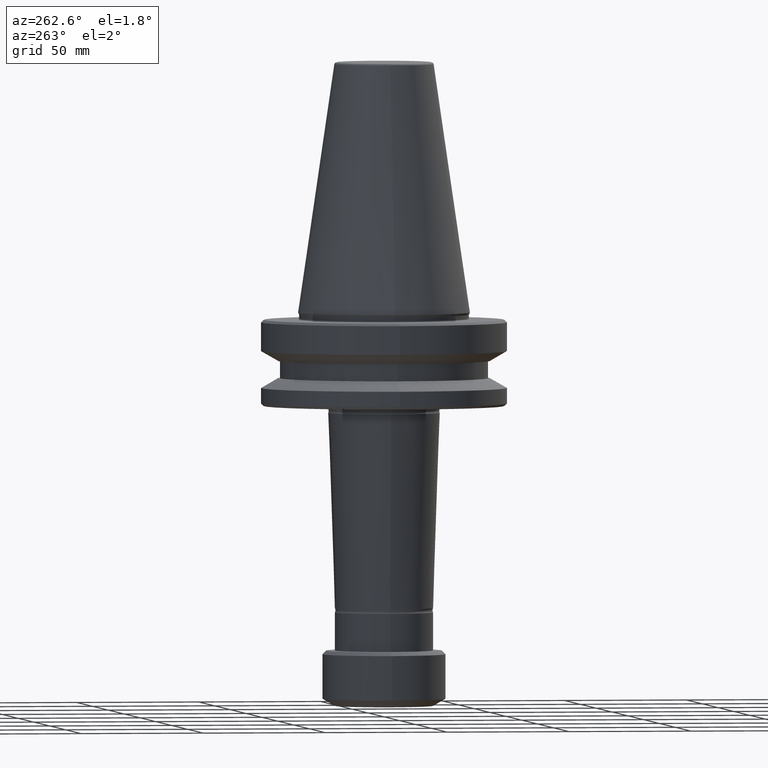
[diagram: clean part render]
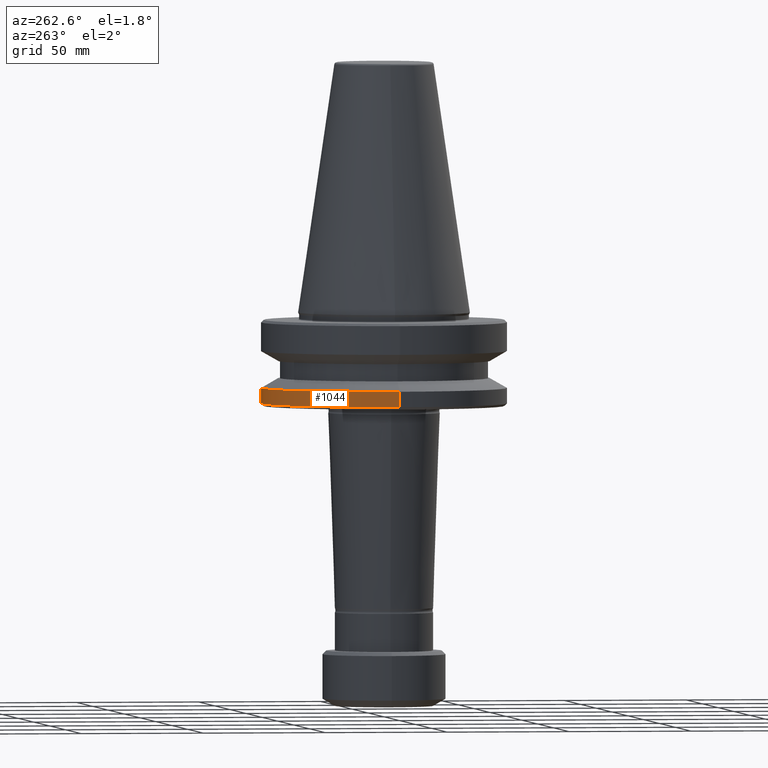
[diagram: same view with one face highlighted and labeled with its STEP entity id]
A machine part, auxiliary view. The second image highlights one B-rep face of the part: STEP entity #1044.
In plain terms, the highlighted cylindrical surface (partial cylindrical patch) has radius 50 mm, axis along (-0, -0, 1).
Its self-contained STEP definition (entity closure, byte-faithful):
#77 = VERTEX_POINT ( 'NONE', #1093 ) ;
#134 = CARTESIAN_POINT ( 'NONE',  ( 0.0000000000000000000, 0.0000000000000000000, 201.3157057760292000 ) ) ;
#161 = ORIENTED_EDGE ( 'NONE', *, *, #1034, .F. ) ;
#199 = VECTOR ( 'NONE', #713, 1000.000000000000000 ) ;
#235 = FACE_OUTER_BOUND ( 'NONE', #983, .T. ) ;
#270 = LINE ( 'NONE', #467, #1330 ) ;
#282 = VERTEX_POINT ( 'NONE', #592 ) ;
#295 = CARTESIAN_POINT ( 'NONE',  ( 0.0000000000000000000, 0.0000000000000000000, -30.69977999677486800 ) ) ;
#330 = CARTESIAN_POINT ( 'NONE',  ( 0.0000000000000000000, 0.0000000000000000000, -37.00000000000181200 ) ) ;
#397 = DIRECTION ( 'NONE',  ( 1.000000000000000000, 0.0000000000000000000, 0.0000000000000000000 ) ) ;
#444 = DIRECTION ( 'NONE',  ( 1.000000000000000000, 0.0000000000000000000, 0.0000000000000000000 ) ) ;
#467 = CARTESIAN_POINT ( 'NONE',  ( 50.00000000000004300, 0.0000000000000000000, 201.3157057760292000 ) ) ;
#499 = CARTESIAN_POINT ( 'NONE',  ( -50.00000000000004300, 6.123233995736771600E-015, -30.69977999677486800 ) ) ;
#506 = AXIS2_PLACEMENT_3D ( 'NONE', #134, #784, #572 ) ;
#545 = ORIENTED_EDGE ( 'NONE', *, *, #911, .T. ) ;
#572 = DIRECTION ( 'NONE',  ( 1.000000000000000000, 0.0000000000000000000, 0.0000000000000000000 ) ) ;
#592 = CARTESIAN_POINT ( 'NONE',  ( 50.00000000000004300, 0.0000000000000000000, -30.69977999677486800 ) ) ;
#615 = ORIENTED_EDGE ( 'NONE', *, *, #1345, .T. ) ;
#662 = AXIS2_PLACEMENT_3D ( 'NONE', #295, #1022, #397 ) ;
#682 = VERTEX_POINT ( 'NONE', #764 ) ;
#713 = DIRECTION ( 'NONE',  ( -0.0000000000000000000, -0.0000000000000000000, 1.000000000000000000 ) ) ;
#716 = ORIENTED_EDGE ( 'NONE', *, *, #1370, .F. ) ;
#743 = CIRCLE ( 'NONE', #662, 50.00000000000004300 ) ;
#764 = CARTESIAN_POINT ( 'NONE',  ( 50.00000000000004300, 0.0000000000000000000, -37.00000000000181200 ) ) ;
#772 = LINE ( 'NONE', #1014, #199 ) ;
#784 = DIRECTION ( 'NONE',  ( -0.0000000000000000000, -0.0000000000000000000, 1.000000000000000000 ) ) ;
#911 = EDGE_CURVE ( 'NONE', #682, #77, #953, .T. ) ;
#953 = CIRCLE ( 'NONE', #1200, 50.00000000000004300 ) ;
#983 = EDGE_LOOP ( 'NONE', ( #545, #615, #716, #161 ) ) ;
#1003 = CYLINDRICAL_SURFACE ( 'NONE', #506, 50.00000000000004300 ) ;
#1014 = CARTESIAN_POINT ( 'NONE',  ( -50.00000000000004300, 6.123233995736771600E-015, 201.3157057760292000 ) ) ;
#1022 = DIRECTION ( 'NONE',  ( -0.0000000000000000000, -0.0000000000000000000, 1.000000000000000000 ) ) ;
#1034 = EDGE_CURVE ( 'NONE', #682, #282, #270, .T. ) ;
#1044 = ADVANCED_FACE ( 'NONE', ( #235 ), #1003, .T. ) ;
#1065 = DIRECTION ( 'NONE',  ( -0.0000000000000000000, -0.0000000000000000000, 1.000000000000000000 ) ) ;
#1093 = CARTESIAN_POINT ( 'NONE',  ( -50.00000000000004300, 6.123233995736770800E-015, -37.00000000000181200 ) ) ;
#1190 = DIRECTION ( 'NONE',  ( -0.0000000000000000000, -0.0000000000000000000, 1.000000000000000000 ) ) ;
#1200 = AXIS2_PLACEMENT_3D ( 'NONE', #330, #1065, #444 ) ;
#1330 = VECTOR ( 'NONE', #1190, 1000.000000000000000 ) ;
#1340 = VERTEX_POINT ( 'NONE', #499 ) ;
#1345 = EDGE_CURVE ( 'NONE', #77, #1340, #772, .T. ) ;
#1370 = EDGE_CURVE ( 'NONE', #282, #1340, #743, .T. ) ;